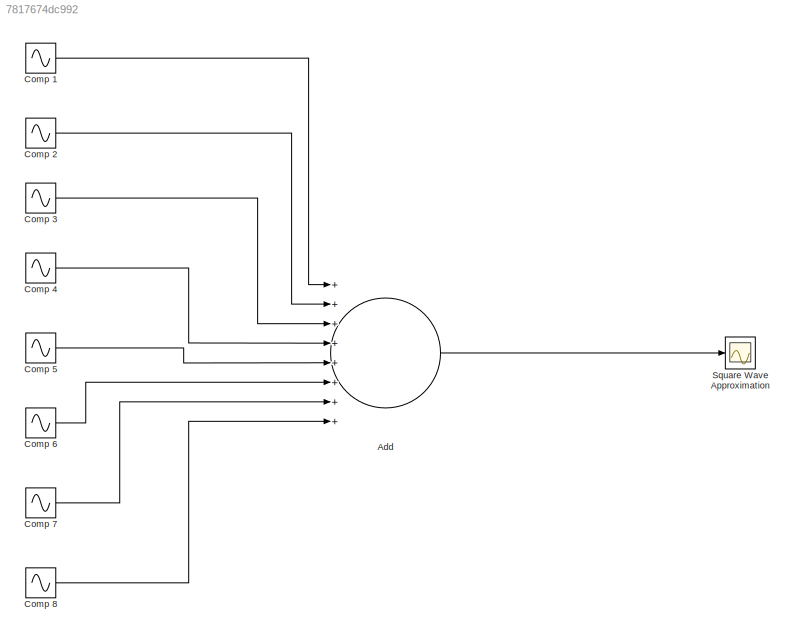
MODEL slx_7817674dc992
KIND model
CONFIG AbsTol = auto
CONFIG EnableMultiTasking = off
CONFIG FixedStep = auto
CONFIG MaxStep = auto
CONFIG MinStep = auto
CONFIG RelTol = 1e-3
CONFIG SampleTimeConstraint = Unconstrained
CONFIG Solver = VariableStepAuto
CONFIG SolverName = VariableStepAuto
CONFIG StartTime = 0.0
CONFIG StopTime = 5e-3
BLOCK [Sum] Add
  InputSameDT = off
  Inputs = ++++++++
  OutDataTypeStr = Inherit: Inherit via internal rule
  Ports = [8, 1]
  SaturateOnIntegerOverflow = off
BLOCK [Sin] Comp 1
  Amplitude = 4/pi
  Frequency = 2*pi*500
  Ports = [0, 1]
  SampleTime = 0.25e-6
BLOCK [Sin] Comp 2
  Amplitude = 4/(3*pi)
  Frequency = 2*pi*1500
  Ports = [0, 1]
  SampleTime = 0.25e-6
BLOCK [Sin] Comp 3
  Amplitude = 4/(5*pi)
  Frequency = 2*pi*2500
  Ports = [0, 1]
  SampleTime = 0.25e-6
BLOCK [Sin] Comp 4
  Amplitude = 4/(7*pi)
  Frequency = 2*pi*3500
  Ports = [0, 1]
  SampleTime = 0.25e-6
BLOCK [Sin] Comp 5
  Amplitude = 4/(9*pi)
  Frequency = 2*pi*4500
  Ports = [0, 1]
  SampleTime = 0.25e-6
BLOCK [Sin] Comp 6
  Amplitude = 4/(11*pi)
  Frequency = 2*pi*5500
  Ports = [0, 1]
  SampleTime = 0.25e-6
BLOCK [Sin] Comp 7
  Amplitude = 4/(13*pi)
  Frequency = 2*pi*6500
  Ports = [0, 1]
  SampleTime = 0.25e-6
BLOCK [Sin] Comp 8
  Amplitude = 4/(15*pi)
  Frequency = 2*pi*7500
  Ports = [0, 1]
  SampleTime = 0.25e-6
BLOCK [Scope] Square Wave Approximation
  Floating = off
  NumInputPorts = 1
  Ports = [1]
  ScopeSpecificationString = Simulink.scopes.TimeScopeBlockCfg('CurrentConfiguration', extmgr.ConfigurationSet(extmgr.Configuration('Core','General UI',true),extmgr.Configuration('Core','Source UI',true),extmgr.Configuration('Sources','WiredSimulink',true),extmgr.Configuration('Visuals','Time Domain',true,'SerializedDisplays',{struct('MinYLimReal','-1.47536','MaxYLimReal','1.47536','YLabelReal','','MinYLimMag','0.00000','MaxY...<+1323ch>
LINE Add:1 -> Square Wave Approximation:1
LINE Comp 1:1 -> Add:1
LINE Comp 2:1 -> Add:2
LINE Comp 3:1 -> Add:3
LINE Comp 4:1 -> Add:4
LINE Comp 5:1 -> Add:5
LINE Comp 6:1 -> Add:6
LINE Comp 7:1 -> Add:7
LINE Comp 8:1 -> Add:8
